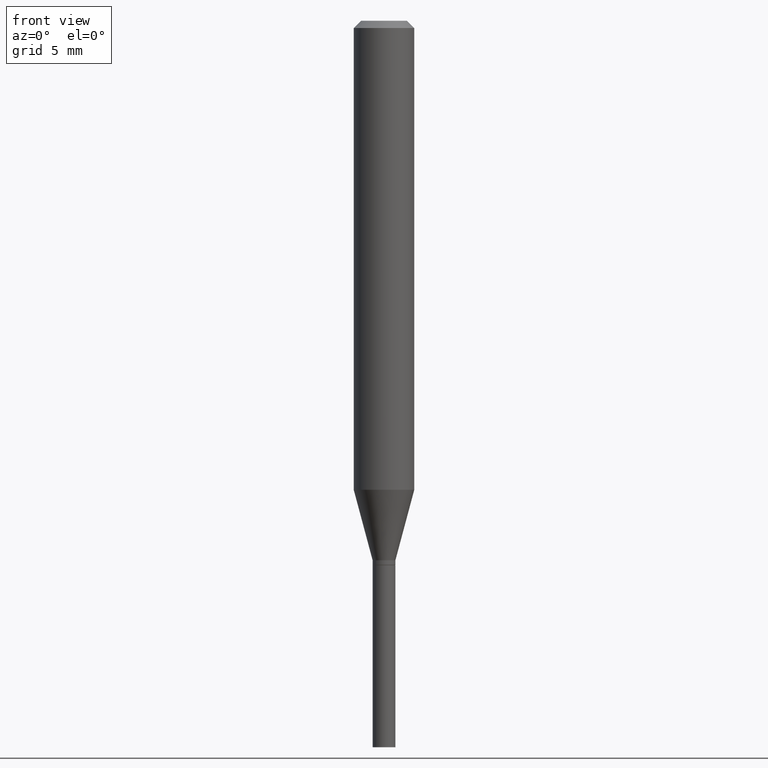
[diagram: clean part render]
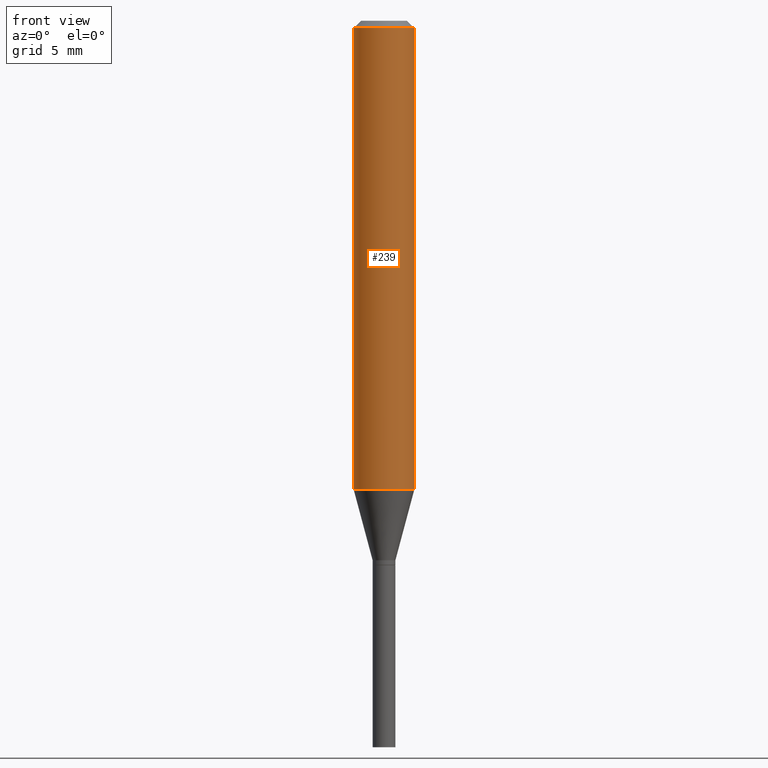
[diagram: same view with one face highlighted and labeled with its STEP entity id]
A machine part, front view. The second image highlights one B-rep face of the part: STEP entity #239.
In plain terms, the highlighted cylindrical surface (edge-blend (fillet) strip) has radius 1.5875 mm, axis along (-0, 0, 1).
Its self-contained STEP definition (entity closure, byte-faithful):
#8 = EDGE_CURVE ( 'NONE', #374, #295, #407, .T. ) ;
#17 = DIRECTION ( 'NONE',  ( -2.445468806185136597E-29, 3.491481338843145583E-15, 1.000000000000000000 ) ) ;
#26 = CARTESIAN_POINT ( 'NONE',  ( -0.06250000000000000000, 4.440892098500626162E-16, -3.074334431409316114E-30 ) ) ;
#53 = VERTEX_POINT ( 'NONE', #305 ) ;
#65 = CARTESIAN_POINT ( 'NONE',  ( 0.000000000000000000, 0.000000000000000000, 0.000000000000000000 ) ) ;
#69 = AXIS2_PLACEMENT_3D ( 'NONE', #65, #226, #357 ) ;
#80 = EDGE_CURVE ( 'NONE', #96, #295, #220, .T. ) ;
#86 = DIRECTION ( 'NONE',  ( 1.000000000000000000, -6.982962677686266711E-15, 0.000000000000000000 ) ) ;
#96 = VERTEX_POINT ( 'NONE', #155 ) ;
#133 = ORIENTED_EDGE ( 'NONE', *, *, #8, .T. ) ;
#143 = AXIS2_PLACEMENT_3D ( 'NONE', #309, #445, #411 ) ;
#151 = CARTESIAN_POINT ( 'NONE',  ( 0.06250000000000000000, -4.888073874380388472E-16, -0.01499999999999999944 ) ) ;
#155 = CARTESIAN_POINT ( 'NONE',  ( -0.06250000000000000000, -1.272759483797190539E-15, -0.01499999999999999944 ) ) ;
#162 = VECTOR ( 'NONE', #410, 39.37007874015748143 ) ;
#168 = CARTESIAN_POINT ( 'NONE',  ( 0.06250000000000000000, -3.817760334567251294E-15, -0.9684500185048144916 ) ) ;
#170 = ORIENTED_EDGE ( 'NONE', *, *, #195, .F. ) ;
#191 = AXIS2_PLACEMENT_3D ( 'NONE', #342, #17, #86 ) ;
#195 = EDGE_CURVE ( 'NONE', #53, #96, #425, .T. ) ;
#220 = CIRCLE ( 'NONE', #191, 0.06250000000000000000 ) ;
#226 = DIRECTION ( 'NONE',  ( -2.445468806185136597E-29, 3.491481338843145583E-15, 1.000000000000000000 ) ) ;
#239 = ADVANCED_FACE ( 'NONE', ( #260 ), #394, .T. ) ;
#259 = VECTOR ( 'NONE', #289, 39.37007874015748143 ) ;
#260 = FACE_OUTER_BOUND ( 'NONE', #444, .T. ) ;
#289 = DIRECTION ( 'NONE',  ( -2.445468806185136877E-29, 3.491481338843145188E-15, 1.000000000000000000 ) ) ;
#295 = VERTEX_POINT ( 'NONE', #151 ) ;
#302 = ORIENTED_EDGE ( 'NONE', *, *, #80, .F. ) ;
#305 = CARTESIAN_POINT ( 'NONE',  ( -0.06250000000000000000, -2.937235957361797009E-15, -0.9684500185048144916 ) ) ;
#309 = CARTESIAN_POINT ( 'NONE',  ( 2.368314310602942149E-29, -3.381325167211859231E-15, -0.9684500185048144916 ) ) ;
#342 = CARTESIAN_POINT ( 'NONE',  ( 3.668203209277705088E-31, -5.237222008264718399E-17, -0.01499999999999999944 ) ) ;
#347 = ORIENTED_EDGE ( 'NONE', *, *, #380, .T. ) ;
#357 = DIRECTION ( 'NONE',  ( 1.000000000000000000, -6.982962677686266711E-15, 4.876176775795935793E-29 ) ) ;
#374 = VERTEX_POINT ( 'NONE', #168 ) ;
#380 = EDGE_CURVE ( 'NONE', #53, #374, #382, .T. ) ;
#382 = CIRCLE ( 'NONE', #143, 0.06250000000000000000 ) ;
#387 = CARTESIAN_POINT ( 'NONE',  ( 0.06250000000000000000, -4.364351673553916694E-16, 3.047610484872459871E-30 ) ) ;
#394 = CYLINDRICAL_SURFACE ( 'NONE', #69, 0.06250000000000000000 ) ;
#407 = LINE ( 'NONE', #387, #162 ) ;
#410 = DIRECTION ( 'NONE',  ( -2.445468806185136877E-29, 3.491481338843145188E-15, 1.000000000000000000 ) ) ;
#411 = DIRECTION ( 'NONE',  ( 1.000000000000000000, -6.982962677686270655E-15, 0.000000000000000000 ) ) ;
#425 = LINE ( 'NONE', #26, #259 ) ;
#444 = EDGE_LOOP ( 'NONE', ( #170, #347, #133, #302 ) ) ;
#445 = DIRECTION ( 'NONE',  ( -2.445468806185136597E-29, 3.491481338843145583E-15, 1.000000000000000000 ) ) ;